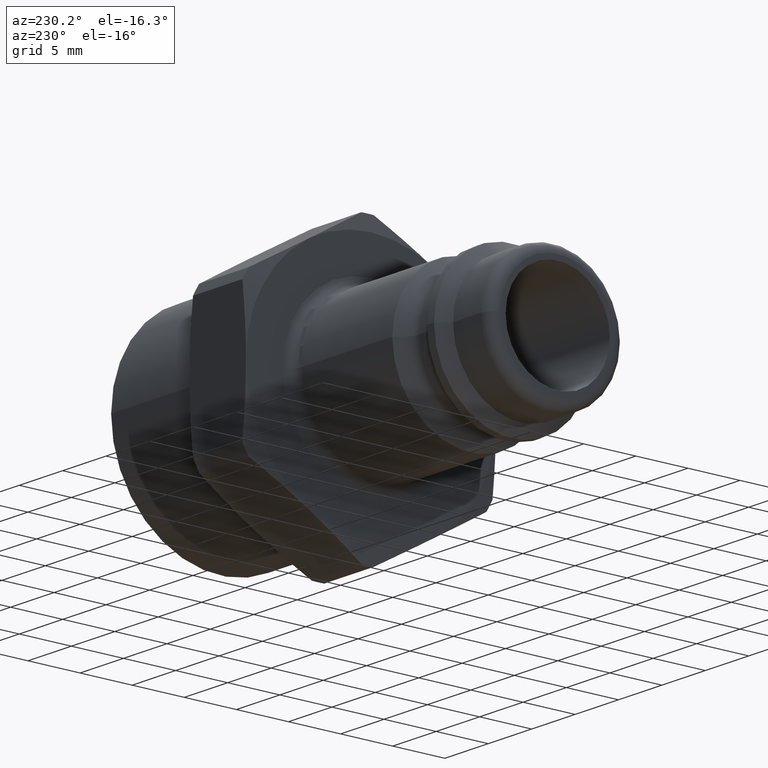
[diagram: clean part render]
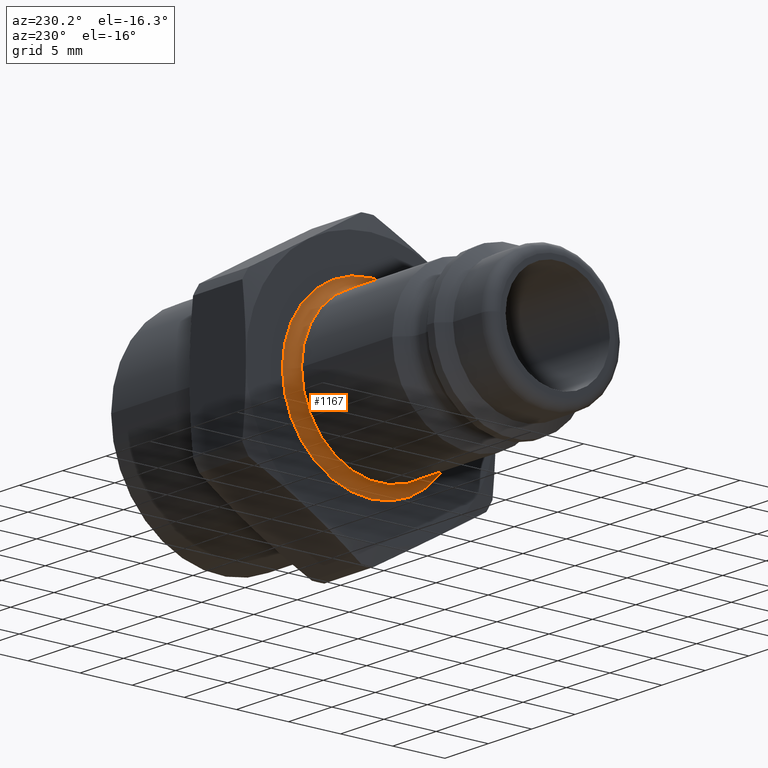
[diagram: same view with one face highlighted and labeled with its STEP entity id]
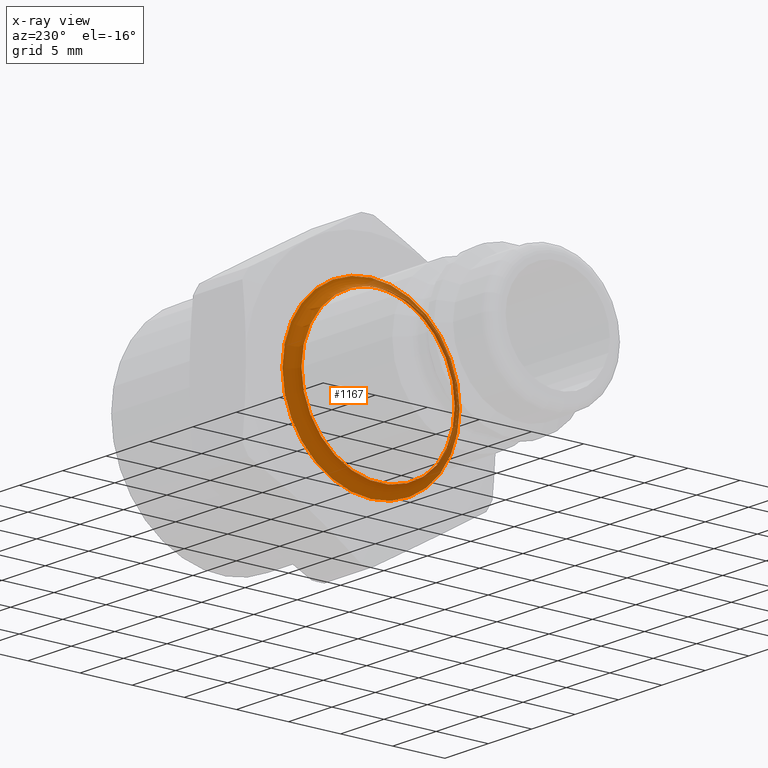
[diagram: x-ray of the same camera — body ghosted, the highlighted face saturated]
A machine part, auxiliary view. The second image highlights one B-rep face of the part: STEP entity #1167.
The next image is the same camera in x-ray: the body ghosted, the highlighted face saturated — about 18% of this face is hidden behind the body in this view.
In plain terms, the highlighted toroidal blend (fillet) surface has major radius 8.5 mm and minor (blend) radius 1 mm.
Its self-contained STEP definition (entity closure, byte-faithful):
#1140=CARTESIAN_POINT('',(20.5,0.0,0.0));
#1141=DIRECTION('',(1.0,0.0,0.0));
#1142=DIRECTION('',(0.0,0.0,-1.0));
#1143=AXIS2_PLACEMENT_3D('',#1140,#1141,#1142);
#1144=TOROIDAL_SURFACE('',#1143,8.5,1.0);
#1145=CARTESIAN_POINT('',(20.5,7.5,0.0));
#1146=VERTEX_POINT('',#1145);
#1147=CARTESIAN_POINT('',(20.5,0.0,0.0));
#1148=DIRECTION('',(1.0,0.0,0.0));
#1149=DIRECTION('',(0.0,-1.0,0.0));
#1150=AXIS2_PLACEMENT_3D('',#1147,#1148,#1149);
#1151=CIRCLE('',#1150,7.5);
#1152=EDGE_CURVE('',#1146,#1146,#1151,.T.);
#1153=ORIENTED_EDGE('',*,*,#1152,.T.);
#1154=EDGE_LOOP('',(#1153));
#1155=FACE_OUTER_BOUND('',#1154,.T.);
#1156=CARTESIAN_POINT('',(21.5,8.5,-2.081900E-015));
#1157=VERTEX_POINT('',#1156);
#1158=CARTESIAN_POINT('',(21.5,0.0,0.0));
#1159=DIRECTION('',(-1.0,0.0,0.0));
#1160=DIRECTION('',(0.0,-1.0,0.0));
#1161=AXIS2_PLACEMENT_3D('',#1158,#1159,#1160);
#1162=CIRCLE('',#1161,8.5);
#1163=EDGE_CURVE('',#1157,#1157,#1162,.T.);
#1164=ORIENTED_EDGE('',*,*,#1163,.T.);
#1165=EDGE_LOOP('',(#1164));
#1166=FACE_BOUND('',#1165,.T.);
#1167=ADVANCED_FACE('',(#1155,#1166),#1144,.F.);